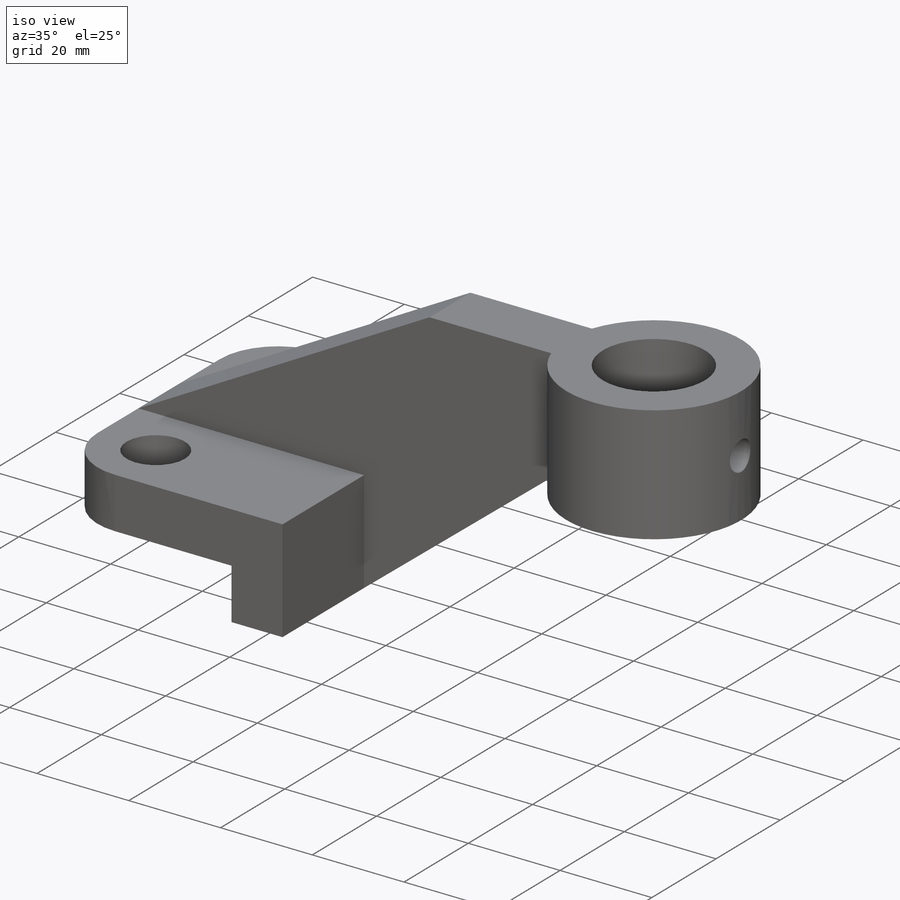
[diagram: iso view]
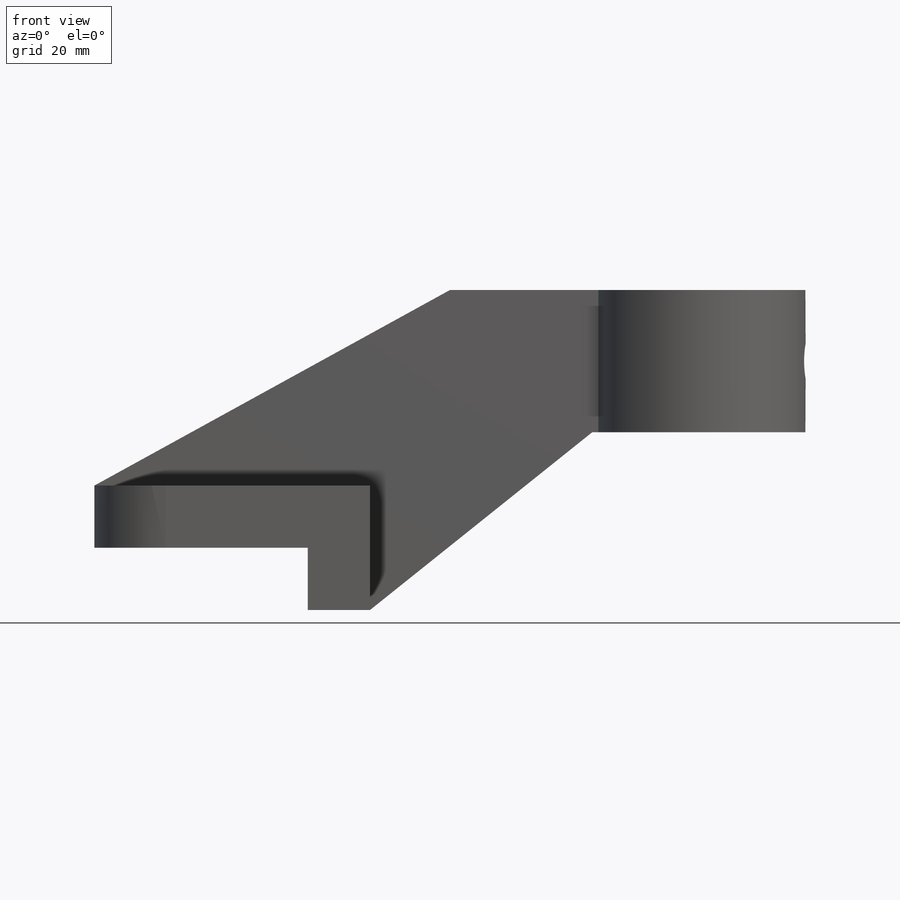
[diagram: front view]
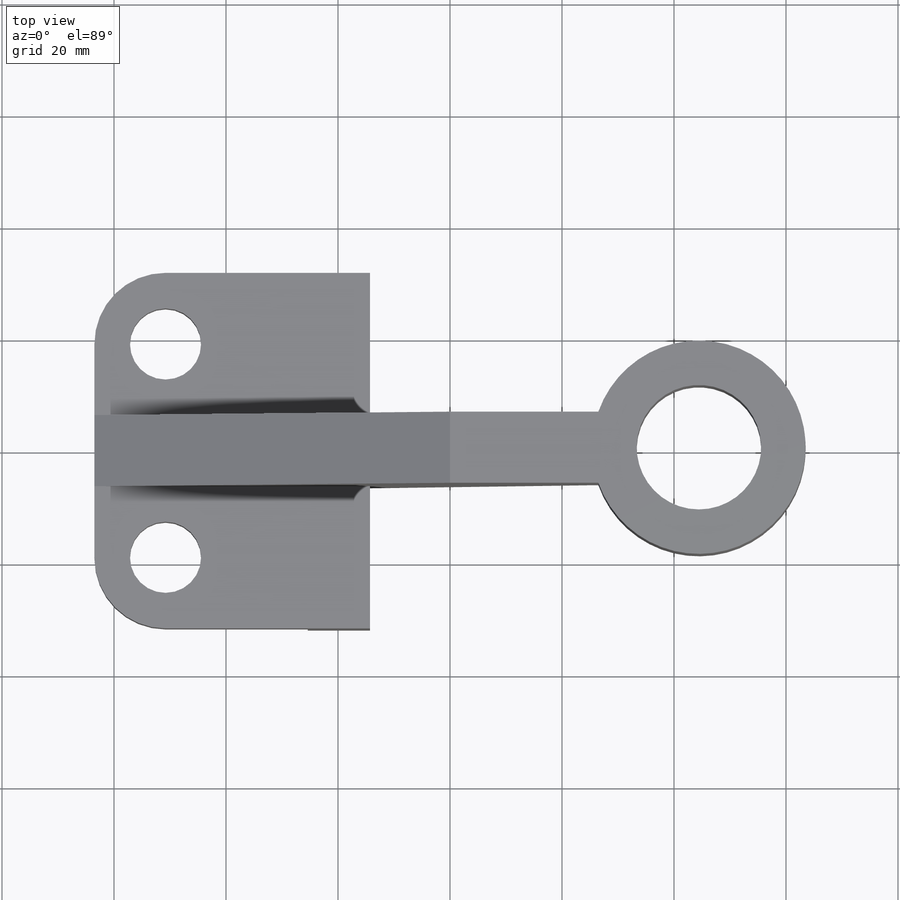
[diagram: top view]
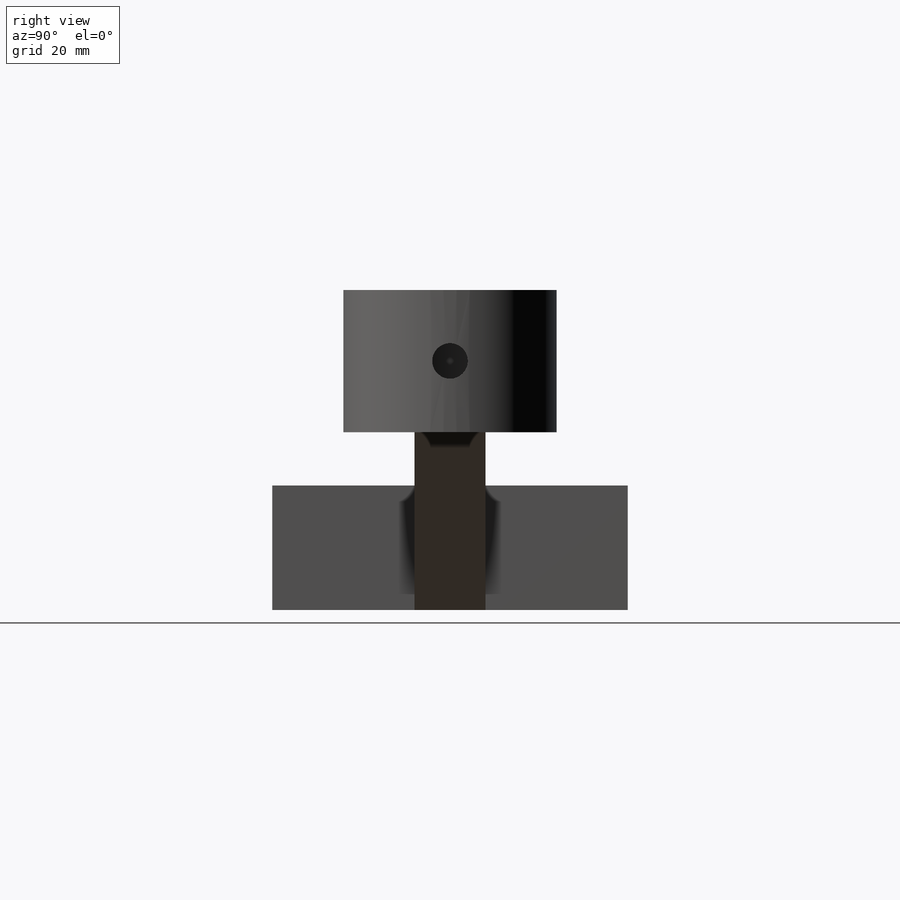
[diagram: right view]
SOLIDWORKS PART (.sldprt)
format: sldprt  version: not decoded by parser v0  size: 239,104 bytes
history: native  units: mm
features: plane x5, sketch x5, extrude x4, material x1, cut_extrude x1 (+8 scaffold rows collapsed)
feature tree (24):
  scaffold x8  (default folders/planes/origin — collapsed)
  material  "Material <sin especificar>"
  plane  "Alzado"
  plane  "Planta"
  plane  "Vista lateral"
  sketch  "Croquis1"  dims[c1.D7=12.7mm c1.D8=12.7mm c1.D9=~13.400032mm c1.D1=127.0mm c1.D2=63.5mm c1.D3=49.2125mm c1.D4=36.5125mm c1.D5=12.7mm c1.D6=38.1mm c2.D7=38.1mm c2.D9=11.1125mm c2.D4=25.4mm]
  extrude  "Saliente-Extruir3"  Depth=11.1125mm
  sketch  "Croquis3"  dims[D1=11.1125mm]
  extrude  "Saliente-Extruir4"  Depth=11.1125mm
  sketch  "Croquis4"  dims[D1=14.2875mm D2=57.15mm D3=39.6875mm D4=31.75mm D5=38.1mm]
  extrude  "Saliente-Extruir5"  Depth=12.7mm
  plane  "Plano2"  Offset=0mm
  sketch  "Croquis6"  dims[D2=22.225mm D3=19.05mm D4=19.05mm D1=38.1mm]
  extrude  "Saliente-Extruir6"  Depth=25.4mm
  plane  "Plano3"  Offset=63.5mm
  sketch  "Croquis7"  dims[D2=6.35mm D1=12.7mm]
  cut_extrude  "Cortar-Extruir2"  Depth=19.05mm
decode coverage: 10 of 10 modeling features carry decoded parameters
note: ~ marks probable driven/reference dimensions
note: suppression state not decoded; provenance and decode notes live in map.json
